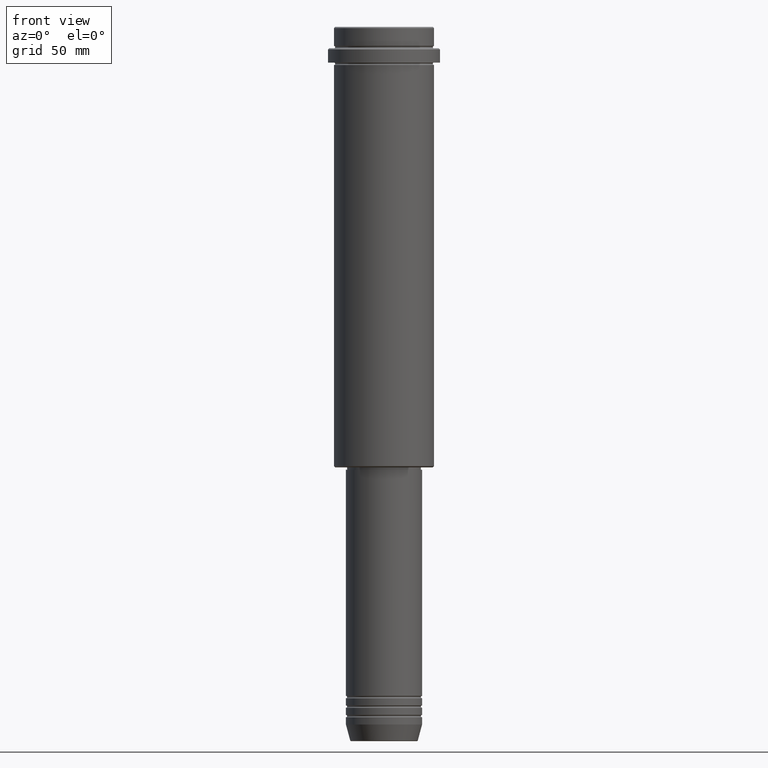
[diagram: clean part render]
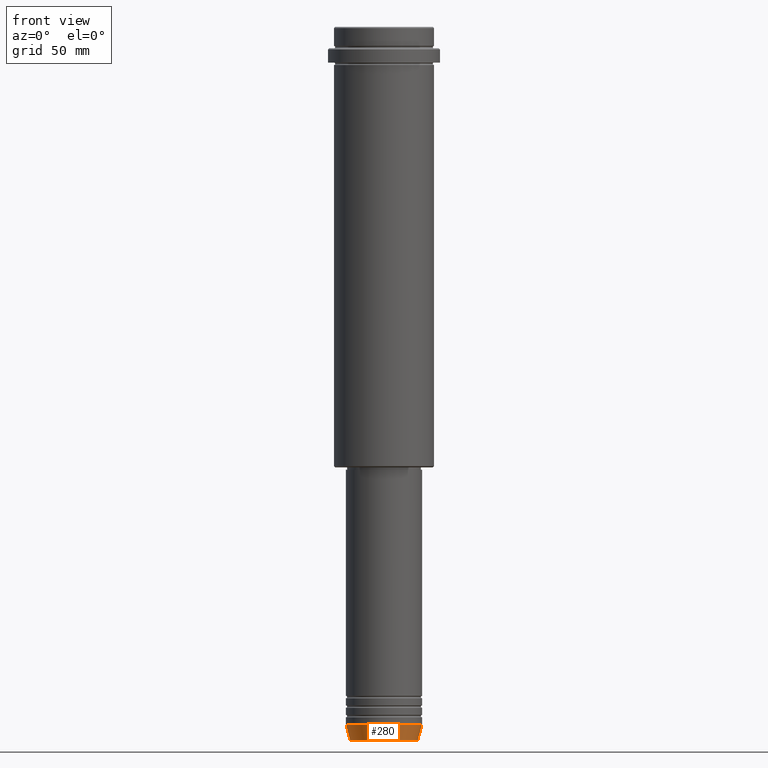
[diagram: same view with one face highlighted and labeled with its STEP entity id]
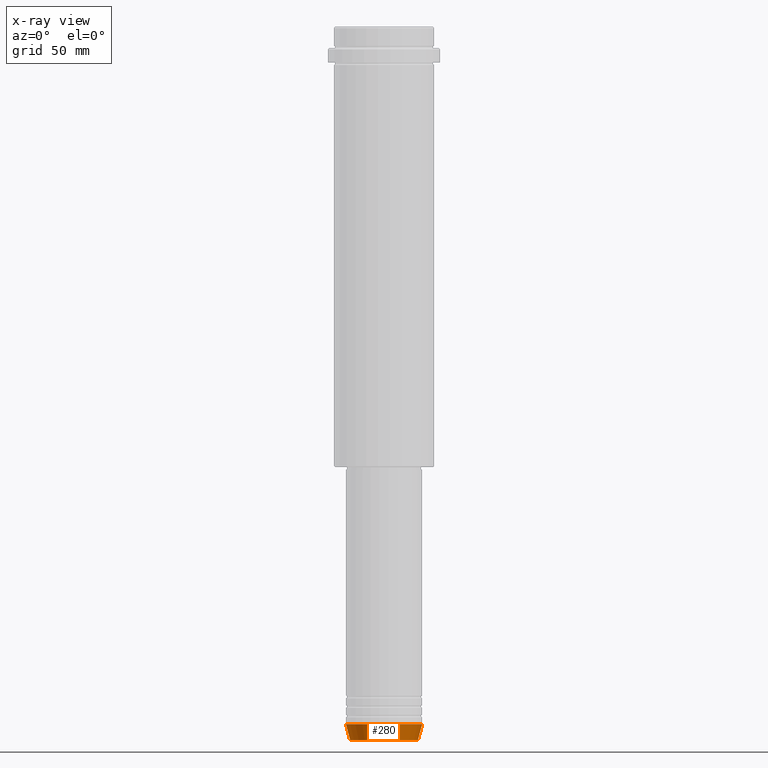
[diagram: x-ray of the same camera — body ghosted, the highlighted face saturated]
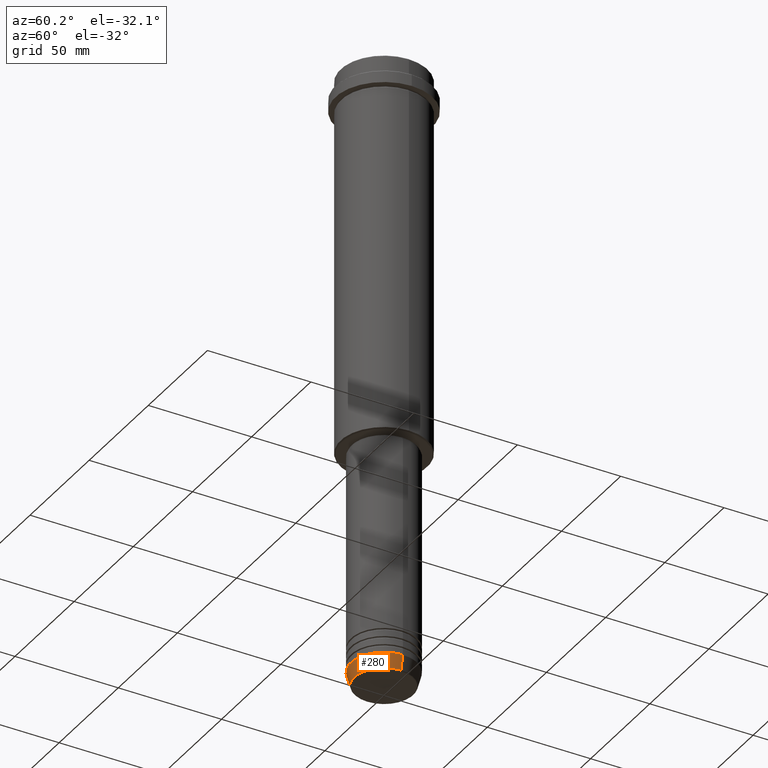
[diagram: same view with one face highlighted and labeled with its STEP entity id]
A machine part, front view. The second image highlights one B-rep face of the part: STEP entity #280.
The next image is the same camera in x-ray: the body ghosted, the highlighted face saturated — about 0% of this face is hidden behind the body in this view.
A second angle (auxiliary view) of the same face is appended — the face is thin or edge-on in the first view.
In plain terms, the highlighted conical surface has half-angle 15 deg.
Its self-contained STEP definition (entity closure, byte-faithful):
#10 = ORIENTED_EDGE ( 'NONE', *, *, #157, .F. ) ;
#14 = EDGE_LOOP ( 'NONE', ( #10, #1235, #809, #584 ) ) ;
#39 = EDGE_CURVE ( 'NONE', #1006, #1199, #556, .T. ) ;
#94 = EDGE_CURVE ( 'NONE', #927, #612, #1065, .T. ) ;
#157 = EDGE_CURVE ( 'NONE', #1006, #927, #610, .T. ) ;
#183 = CARTESIAN_POINT ( 'NONE',  ( -16.00000000000000000, 1.959434878635765131E-15, -293.0000000000000000 ) ) ;
#202 = CARTESIAN_POINT ( 'NONE',  ( 0.000000000000000000, 0.000000000000000000, -293.0000000000000000 ) ) ;
#234 = LINE ( 'NONE', #981, #266 ) ;
#266 = VECTOR ( 'NONE', #319, 1000.000000000000000 ) ;
#280 = ADVANCED_FACE ( 'NONE', ( #644 ), #514, .T. ) ;
#319 = DIRECTION ( 'NONE',  ( 0.2588190451025213501, 0.000000000000000000, 0.9659258262890680902 ) ) ;
#322 = DIRECTION ( 'NONE',  ( 1.000000000000000000, 0.000000000000000000, 0.000000000000000000 ) ) ;
#395 = DIRECTION ( 'NONE',  ( 1.000000000000000000, 0.000000000000000000, 0.000000000000000000 ) ) ;
#442 = AXIS2_PLACEMENT_3D ( 'NONE', #1034, #807, #716 ) ;
#514 = CONICAL_SURFACE ( 'NONE', #1092, 16.00000000000000000, 0.2617993877991500740 ) ;
#535 = CARTESIAN_POINT ( 'NONE',  ( 14.22365507213718772, 0.000000000000000000, -299.6294095225512137 ) ) ;
#556 = CIRCLE ( 'NONE', #913, 14.22365507213718772 ) ;
#584 = ORIENTED_EDGE ( 'NONE', *, *, #94, .F. ) ;
#610 = LINE ( 'NONE', #183, #934 ) ;
#612 = VERTEX_POINT ( 'NONE', #623 ) ;
#623 = CARTESIAN_POINT ( 'NONE',  ( 16.00000000000000000, 0.000000000000000000, -293.0000000000000000 ) ) ;
#644 = FACE_OUTER_BOUND ( 'NONE', #14, .T. ) ;
#716 = DIRECTION ( 'NONE',  ( 1.000000000000000000, 0.000000000000000000, 0.000000000000000000 ) ) ;
#807 = DIRECTION ( 'NONE',  ( -0.000000000000000000, -0.000000000000000000, 1.000000000000000000 ) ) ;
#809 = ORIENTED_EDGE ( 'NONE', *, *, #1152, .T. ) ;
#812 = CARTESIAN_POINT ( 'NONE',  ( 0.000000000000000000, 0.000000000000000000, -299.6294095225512137 ) ) ;
#830 = CARTESIAN_POINT ( 'NONE',  ( -16.00000000000000000, 1.959434878635765131E-15, -293.0000000000000000 ) ) ;
#913 = AXIS2_PLACEMENT_3D ( 'NONE', #812, #1133, #395 ) ;
#927 = VERTEX_POINT ( 'NONE', #830 ) ;
#934 = VECTOR ( 'NONE', #943, 1000.000000000000000 ) ;
#943 = DIRECTION ( 'NONE',  ( -0.2588190451025213501, 3.169619151431772337E-17, 0.9659258262890680902 ) ) ;
#981 = CARTESIAN_POINT ( 'NONE',  ( 16.00000000000000000, 0.000000000000000000, -293.0000000000000000 ) ) ;
#1006 = VERTEX_POINT ( 'NONE', #1275 ) ;
#1034 = CARTESIAN_POINT ( 'NONE',  ( 0.000000000000000000, 0.000000000000000000, -293.0000000000000000 ) ) ;
#1065 = CIRCLE ( 'NONE', #442, 16.00000000000000000 ) ;
#1092 = AXIS2_PLACEMENT_3D ( 'NONE', #202, #1392, #322 ) ;
#1133 = DIRECTION ( 'NONE',  ( -0.000000000000000000, -0.000000000000000000, 1.000000000000000000 ) ) ;
#1152 = EDGE_CURVE ( 'NONE', #1199, #612, #234, .T. ) ;
#1199 = VERTEX_POINT ( 'NONE', #535 ) ;
#1235 = ORIENTED_EDGE ( 'NONE', *, *, #39, .T. ) ;
#1275 = CARTESIAN_POINT ( 'NONE',  ( -14.22365507213718772, 1.850665122131323337E-15, -299.6294095225512137 ) ) ;
#1392 = DIRECTION ( 'NONE',  ( -0.000000000000000000, -0.000000000000000000, 1.000000000000000000 ) ) ;